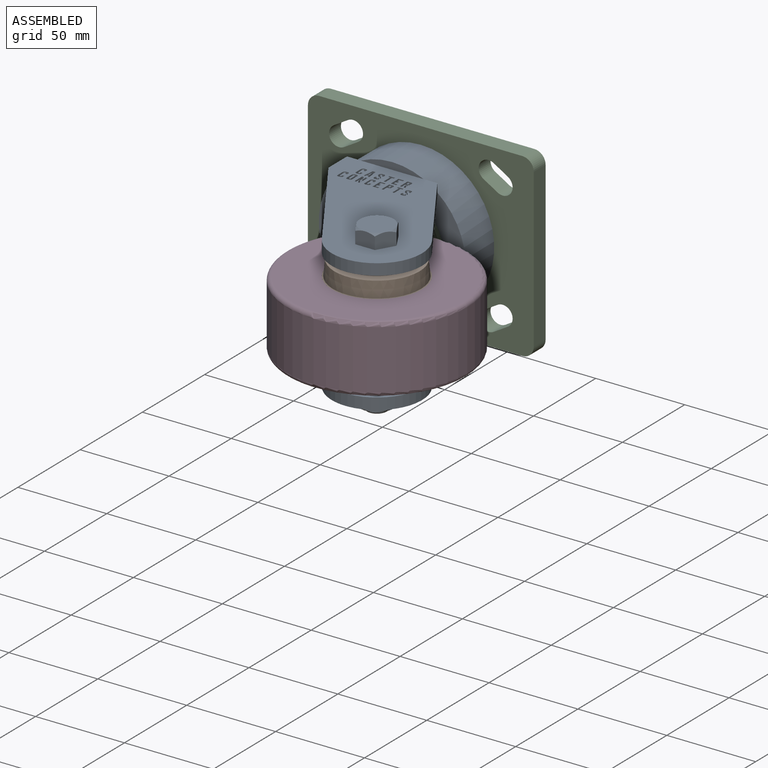
[diagram: assembled view]
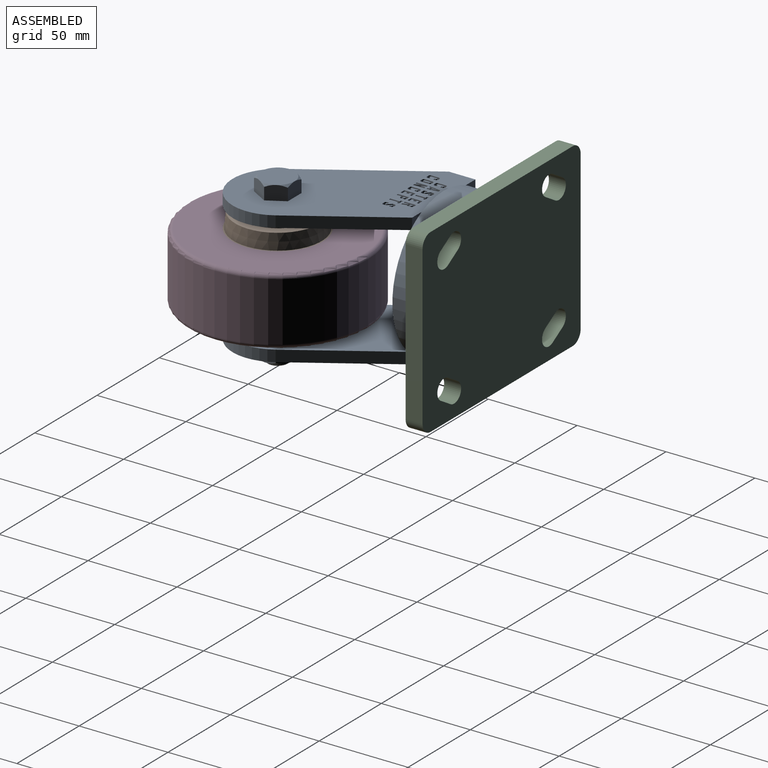
[diagram: assembled view, second angle]
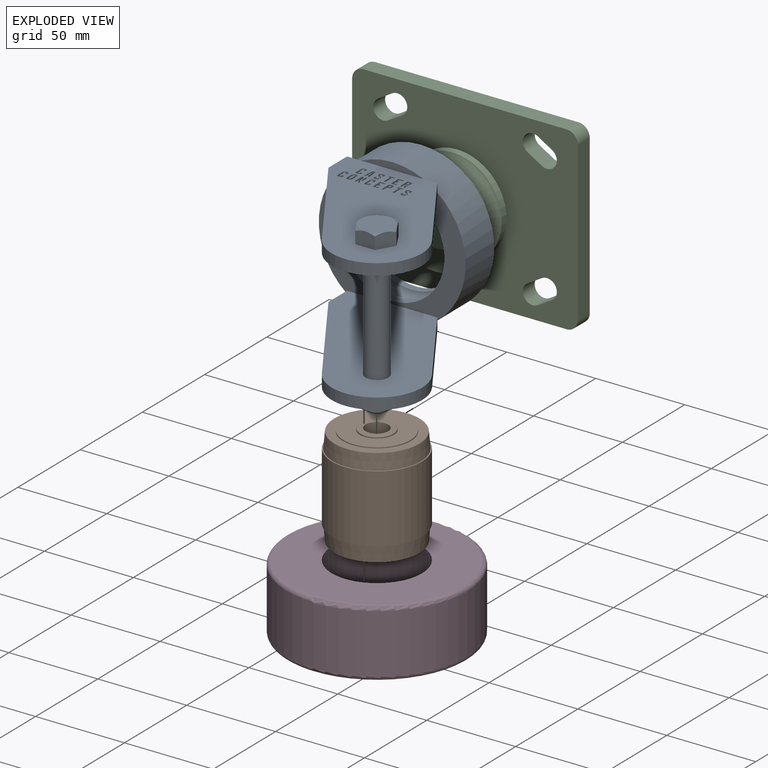
[diagram: exploded view]
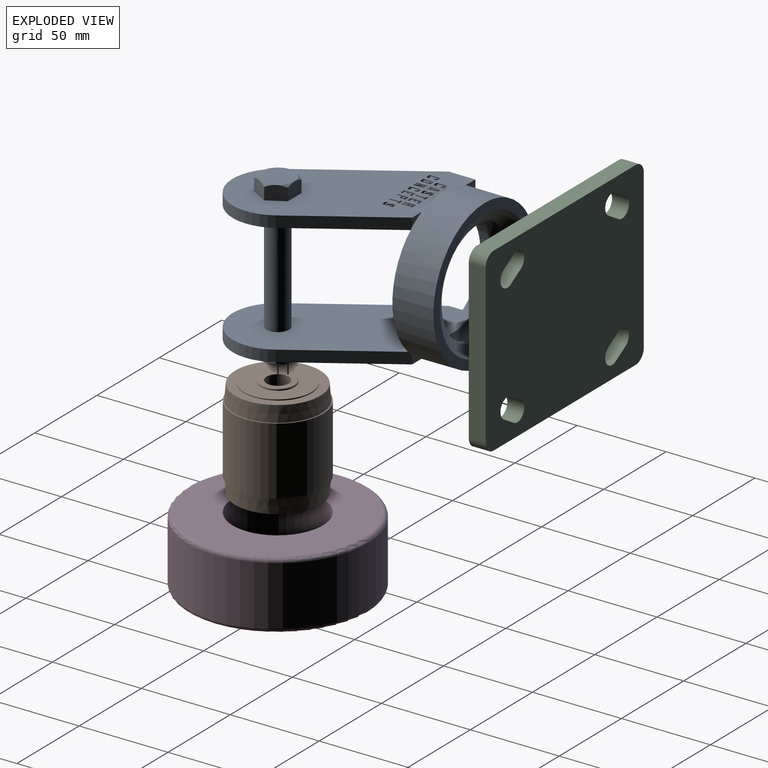
[diagram: exploded view, second angle]
ASSEMBLY  parts=4 mates=3
PART A: 279 faces, bbox 105.8x116.1x94.8 mm
  f0: cone r=9.53mm half-angle=50.3deg, axis (0,0,-1), area 10mm2, adj f27,f263,f268
  f1: cone r=9.53mm half-angle=50.3deg, axis (0,0,-1), area 10mm2, adj f27,f263,f264
  f2: cone r=9.53mm half-angle=50.3deg, axis (0,0,-1), area 10mm2, adj f27,f264,f265
  f3: cone r=9.53mm half-angle=50.3deg, axis (0,0,-1), area 10mm2, adj f27,f265,f266
  f4: cone r=9.53mm half-angle=50.3deg, axis (0,0,-1), area 10mm2, adj f27,f266,f267
  f5: cone r=9.53mm half-angle=50.3deg, axis (0,0,-1), area 10mm2, adj f27,f267,f268
  f6: plane 14.93x6.35mm, normal (-1,0,0), area 94.8mm2, adj f8,f14,f24,f209,f247
  f7: plane 14.93x6.35mm, normal (-1,0,0), area 94.8mm2, adj f9,f14,f23,f27,f248
  f8: plane 65.49x42.14mm, normal (-0.84,-0.54,0), area 494.5mm2, adj f6,f10,f209,f247
  f9: plane 65.49x42.14mm, normal (-0.84,-0.54,0), area 494.5mm2, adj f7,f11,f27,f248
  f10: cylinder r=25.4mm len=46.76mm, axis (0,0,-1), area 506.7mm2, adj f8,f12,f209,f247
  f11: cylinder r=25.4mm len=46.76mm, axis (0,0,-1), area 506.7mm2, adj f9,f13,f27,f248
  f12: plane 52.93x34.06mm, normal (0.84,0.54,0), area 399.7mm2, adj f10,f14,f25,f209,f247
  f13: plane 52.93x34.06mm, normal (0.84,0.54,0), area 399.7mm2, adj f11,f14,f26,f27,f248
  f14: plane 82.55x65.07mm, normal (0,-1,0), area 1877.4mm2, adj f6,f7,f12,f13,f18,f20,f247,f248
  f15: plane 35.32x3.97mm, normal (0,-1,0), area 94.4mm2, adj f20,f27
  f16: cylinder r=29.36mm len=58.73mm, axis (0,-1,0), area 764.8mm2, adj f17,f22
  f17: torus R=28.47mm, axis (0,-1,0), area 2732.4mm2, adj f16,f18
  f18: cylinder r=29.36mm len=58.73mm, axis (0,-1,0), area 1013.1mm2, adj f14,f17
  f19: plane 35.32x3.97mm, normal (0,-1,0), area 94.4mm2, adj f20,f209
  f20: cylinder r=41.27mm len=82.55mm, axis (0,-1,0), area 5968mm2, adj f14,f15,f19,f21,f23,f24,f25,f26
  f21: plane 82.55x82.55mm, normal (0,1,0), area 1316.8mm2, adj f20,f22
  f22: cone r=35.84mm half-angle=60deg, axis (0,1,0), area 1531.4mm2, adj f16,f21
  f23: plane 7.74x4.77mm, normal (0,1,0), area 16.9mm2, adj f7,f20,f27
  f24: plane 7.74x4.77mm, normal (0,1,0), area 16.9mm2, adj f6,f20,f209
  f25: plane 7.74x4.77mm, normal (0,1,0), area 16.9mm2, adj f12,f20,f209
  f26: plane 7.74x4.77mm, normal (0,1,0), area 16.9mm2, adj f13,f20,f27
  f27: plane 92.08x88.9mm, normal (0,0,-1), area 4684.4mm2, adj f0,f1,f2,f3,f4,f5,f7,f9
  f28: plane 1.27x1.02mm, normal (1,0,0), area 1.3mm2, adj f29,f195,f209,f223
  f29: plane 1.27x1.02mm, normal (0,-1,0), area 1.3mm2, adj f28,f30,f209,f223
  f30: plane 1.27x0.51mm, normal (-1,0,0), area 0.6mm2, adj f29,f31,f209,f223
  f31: cylinder r=0.51mm len=1.27mm, axis (0,0,1), area 2mm2, adj f30,f32,f209,f223
  f32: plane 1.27x0.41mm, normal (1,0,0), area 0.5mm2, adj f31,f33,f209,f223
  f33: cylinder r=0.25mm len=1.27mm, axis (0,0,1), area 0.2mm2, adj f32,f34,f209,f223
  f34: plane 1.9x1.79mm, normal (0.73,0.69,0), area 3.3mm2, adj f33,f35,f209,f223
  f35: cylinder r=0.64mm len=1.27mm, axis (0,0,1), area 0.6mm2, adj f34,f36,f209,f223
  f36: plane 1.27x0.76mm, normal (1,0,0), area 1mm2, adj f35,f37,f209,f223
  f37: cylinder r=1.02mm len=1.27mm, axis (0,0,1), area 2mm2, adj f36,f38,f209,f223
  f38: plane 1.27x1.02mm, normal (0,-1,0), area 1.3mm2, adj f37,f39,f209,f223
  f39: cylinder r=1.02mm len=1.27mm, axis (0,0,1), area 2mm2, adj f38,f40,f209,f223
  f40: plane 1.27x1.02mm, normal (-1,0,0), area 1.3mm2, adj f39,f41,f209,f223
  f41: plane 1.27x1.02mm, normal (0,1,0), area 1.3mm2, adj f40,f42,f209,f223
  f42: plane 1.27x0.51mm, normal (1,0,0), area 0.6mm2, adj f41,f43,f209,f223
  f43: cylinder r=0.51mm len=1.27mm, axis (0,0,1), area 2mm2, adj f42,f44,f209,f223
  f44: plane 1.27x0.19mm, normal (-1,0,0), area 0.2mm2, adj f43,f45,f209,f223
  f45: cylinder r=0.25mm len=1.27mm, axis (0,0,1), area 0.2mm2, adj f44,f46,f209,f223
  f46: plane 1.79x1.69mm, normal (-0.73,-0.69,0), area 3.1mm2, adj f45,f47,f209,f223
  f47: cylinder r=1.02mm len=1.27mm, axis (0,0,1), area 1mm2, adj f46,f48,f209,f223
  f48: plane 1.27x0.83mm, normal (-1,0,0), area 1.1mm2, adj f47,f49,f209,f223
  f49: cylinder r=1.02mm len=1.27mm, axis (0,0,1), area 2mm2, adj f48,f50,f209,f223
  f50: plane 1.27x1.02mm, normal (0,1,0), area 1.3mm2, adj f49,f195,f209,f223
  f51: plane 1.27x1.02mm, normal (1,0,0), area 1.3mm2, adj f52,f196,f209,f222
  f52: plane 3.05x1.27mm, normal (0,-1,0), area 3.9mm2, adj f51,f53,f209,f222
  f53: plane 1.27x1.02mm, normal (-1,0,0), area 1.3mm2, adj f52,f54,f209,f222
  f54: plane 1.27x1.02mm, normal (0,1,0), area 1.3mm2, adj f53,f55,f209,f222
  f55: plane 5.21x1.27mm, normal (-1,0,0), area 6.6mm2, adj f54,f56,f209,f222
  f56: plane 1.27x1.02mm, normal (0,1,0), area 1.3mm2, adj f55,f57,f209,f222
  f57: plane 5.21x1.27mm, normal (1,0,0), area 6.6mm2, adj f56,f196,f209,f222
  f58: plane 6.22x1.27mm, normal (1,0,0), area 7.9mm2, adj f59,f197,f209,f221
  f59: plane 2.03x1.27mm, normal (0,-1,0), area 2.6mm2, adj f58,f60,f209,f221
  f60: cylinder r=1.02mm len=1.27mm, axis (0,0,1), area 2mm2, adj f59,f61,f209,f221
  f61: plane 1.4x1.27mm, normal (-1,0,0), area 1.8mm2, adj f60,f62,f209,f221
  f62: cylinder r=1.02mm len=1.27mm, axis (0,0,1), area 1.5mm2, adj f61,f63,f209,f221
  f63: plane 2.88x1.27mm, normal (-0.98,-0.21,0), area 3.7mm2, adj f62,f64,f209,f221
  f64: plane 1.27x1.02mm, normal (0,1,0), area 1.3mm2, adj f63,f65,f209,f221
  f65: plane 2.79x1.27mm, normal (0.98,0.21,0), area 3.6mm2, adj f64,f66,f209,f221
  f66: plane 1.27x0.43mm, normal (0,1,0), area 0.5mm2, adj f65,f67,f209,f221
  f67: plane 2.79x1.27mm, normal (-1,0,0), area 3.5mm2, adj f66,f197,f209,f221
  f68: plane 6.22x1.27mm, normal (1,0,0), area 7.9mm2, adj f69,f198,f209,f220
  f69: plane 3.05x1.27mm, normal (0,-1,0), area 3.9mm2, adj f68,f70,f209,f220
  f70: plane 1.27x1.02mm, normal (-1,0,0), area 1.3mm2, adj f69,f71,f209,f220
  f71: plane 2.03x1.27mm, normal (0,1,0), area 2.6mm2, adj f70,f72,f209,f220
  f72: plane 1.4x1.27mm, normal (-1,0,0), area 1.8mm2, adj f71,f73,f209,f220
  f73: plane 1.27x1.02mm, normal (0,-1,0), area 1.3mm2, adj f72,f74,f209,f220
  f74: plane 1.4x1.27mm, normal (-1,0,0), area 1.8mm2, adj f73,f75,f209,f220
  f75: plane 1.27x1.02mm, normal (0,1,0), area 1.3mm2, adj f74,f76,f209,f220
  f76: plane 1.4x1.27mm, normal (-1,0,0), area 1.8mm2, adj f75,f77,f209,f220
  f77: plane 2.03x1.27mm, normal (0,-1,0), area 2.6mm2, adj f76,f78,f209,f220
  f78: plane 1.27x1.02mm, normal (-1,0,0), area 1.3mm2, adj f77,f198,f209,f220
  f79: plane 6.22x1.27mm, normal (1,0,0), area 7.9mm2, adj f80,f199,f209,f219
  f80: plane 2.03x1.27mm, normal (0,-1,0), area 2.6mm2, adj f79,f81,f209,f219
  f81: cylinder r=1.02mm len=1.27mm, axis (0,0,1), area 2mm2, adj f80,f82,f209,f219
  f82: plane 1.4x1.27mm, normal (-1,0,0), area 1.8mm2, adj f81,f83,f209,f219
  f83: cylinder r=1.02mm len=1.27mm, axis (0,0,1), area 2mm2, adj f82,f84,f209,f219
  f84: plane 1.27x1.02mm, normal (0,1,0), area 1.3mm2, adj f83,f85,f209,f219
  f85: plane 2.79x1.27mm, normal (-1,0,0), area 3.5mm2, adj f84,f199,f209,f219
  f86: plane 6.22x1.27mm, normal (1,0,0), area 7.9mm2, adj f87,f200,f209,f218
  f87: plane 3.05x1.27mm, normal (0,-1,0), area 3.9mm2, adj f86,f88,f209,f218
  f88: plane 1.27x1.02mm, normal (-1,0,0), area 1.3mm2, adj f87,f89,f209,f218
  f89: plane 2.03x1.27mm, normal (0,1,0), area 2.6mm2, adj f88,f90,f209,f218
  f90: plane 1.4x1.27mm, normal (-1,0,0), area 1.8mm2, adj f89,f91,f209,f218
  f91: plane 1.27x1.02mm, normal (0,-1,0), area 1.3mm2, adj f90,f92,f209,f218
  f92: plane 1.4x1.27mm, normal (-1,0,0), area 1.8mm2, adj f91,f93,f209,f218
  f93: plane 1.27x1.02mm, normal (0,1,0), area 1.3mm2, adj f92,f94,f209,f218
  f94: plane 1.4x1.27mm, normal (-1,0,0), area 1.8mm2, adj f93,f95,f209,f218
  f95: plane 2.03x1.27mm, normal (0,-1,0), area 2.6mm2, adj f94,f96,f209,f218
  f96: plane 1.27x1.02mm, normal (-1,0,0), area 1.3mm2, adj f95,f200,f209,f218
  f97: plane 1.27x1.02mm, normal (1,0,0), area 1.3mm2, adj f98,f201,f209,f217
  f98: plane 3.05x1.27mm, normal (0,-1,0), area 3.9mm2, adj f97,f99,f209,f217
  f99: plane 1.27x1.02mm, normal (-1,0,0), area 1.3mm2, adj f98,f100,f209,f217
  f100: plane 1.27x1.02mm, normal (0,1,0), area 1.3mm2, adj f99,f101,f209,f217
  f101: plane 5.21x1.27mm, normal (-1,0,0), area 6.6mm2, adj f100,f102,f209,f217
  f102: plane 1.27x1.02mm, normal (0,1,0), area 1.3mm2, adj f101,f103,f209,f217
  f103: plane 5.21x1.27mm, normal (1,0,0), area 6.6mm2, adj f102,f201,f209,f217
  f104: plane 1.27x1.02mm, normal (1,0,0), area 1.3mm2, adj f105,f202,f209,f216
  f105: plane 1.27x1.02mm, normal (0,-1,0), area 1.3mm2, adj f104,f106,f209,f216
  f106: plane 1.27x0.51mm, normal (-1,0,0), area 0.6mm2, adj f105,f107,f209,f216
  f107: cylinder r=0.51mm len=1.27mm, axis (0,0,1), area 2mm2, adj f106,f108,f209,f216
  f108: plane 1.27x0.41mm, normal (1,0,0), area 0.5mm2, adj f107,f109,f209,f216
  f109: cylinder r=0.25mm len=1.27mm, axis (0,0,1), area 0.2mm2, adj f108,f110,f209,f216
  f110: plane 1.9x1.79mm, normal (0.73,0.69,0), area 3.3mm2, adj f109,f111,f209,f216
  f111: cylinder r=0.64mm len=1.27mm, axis (0,0,1), area 0.6mm2, adj f110,f112,f209,f216
  f112: plane 1.27x0.76mm, normal (1,0,0), area 1mm2, adj f111,f113,f209,f216
  f113: cylinder r=1.02mm len=1.27mm, axis (0,0,1), area 2mm2, adj f112,f114,f209,f216
  f114: plane 1.27x1.02mm, normal (0,-1,0), area 1.3mm2, adj f113,f115,f209,f216
  f115: cylinder r=1.02mm len=1.27mm, axis (0,0,1), area 2mm2, adj f114,f116,f209,f216
  f116: plane 1.27x1.02mm, normal (-1,0,0), area 1.3mm2, adj f115,f117,f209,f216
  f117: plane 1.27x1.02mm, normal (0,1,0), area 1.3mm2, adj f116,f118,f209,f216
  f118: plane 1.27x0.51mm, normal (1,0,0), area 0.6mm2, adj f117,f119,f209,f216
  f119: cylinder r=0.51mm len=1.27mm, axis (0,0,1), area 2mm2, adj f118,f120,f209,f216
  f120: plane 1.27x0.19mm, normal (-1,0,0), area 0.2mm2, adj f119,f121,f209,f216
  f121: cylinder r=0.25mm len=1.27mm, axis (0,0,1), area 0.2mm2, adj f120,f122,f209,f216
  f122: plane 1.79x1.69mm, normal (-0.73,-0.69,0), area 3.1mm2, adj f121,f123,f209,f216
  f123: cylinder r=1.02mm len=1.27mm, axis (0,0,1), area 1mm2, adj f122,f124,f209,f216
  f124: plane 1.27x0.83mm, normal (-1,0,0), area 1.1mm2, adj f123,f125,f209,f216
  f125: cylinder r=1.02mm len=1.27mm, axis (0,0,1), area 2mm2, adj f124,f126,f209,f216
  f126: plane 1.27x1.02mm, normal (0,1,0), area 1.3mm2, adj f125,f202,f209,f216
  f127: plane 4.19x1.27mm, normal (1,0,0), area 5.3mm2, adj f128,f203,f209,f215
  f128: cylinder r=1.02mm len=1.27mm, axis (0,0,1), area 2mm2, adj f127,f129,f209,f215
  f129: plane 1.27x1.02mm, normal (0,-1,0), area 1.3mm2, adj f128,f130,f209,f215
  f130: cylinder r=1.02mm len=1.27mm, axis (0,0,1), area 2mm2, adj f129,f131,f209,f215
  f131: plane 1.27x1.02mm, normal (-1,0,0), area 1.3mm2, adj f130,f132,f209,f215
  f132: plane 1.27x1.02mm, normal (0,1,0), area 1.3mm2, adj f131,f133,f209,f215
  f133: plane 1.27x0.51mm, normal (1,0,0), area 0.6mm2, adj f132,f134,f209,f215
  f134: cylinder r=0.51mm len=1.27mm, axis (0,0,1), area 2mm2, adj f133,f135,f209,f215
  f135: plane 3.18x1.27mm, normal (-1,0,0), area 4mm2, adj f134,f136,f209,f215
  f136: cylinder r=0.51mm len=1.27mm, axis (0,0,1), area 2mm2, adj f135,f137,f209,f215
  f137: plane 1.27x0.51mm, normal (1,0,0), area 0.6mm2, adj f136,f138,f209,f215
  f138: plane 1.27x1.02mm, normal (0,-1,0), area 1.3mm2, adj f137,f139,f209,f215
  f139: plane 1.27x1.02mm, normal (-1,0,0), area 1.3mm2, adj f138,f140,f209,f215
  f140: cylinder r=1.02mm len=1.27mm, axis (0,0,1), area 2mm2, adj f139,f141,f209,f215
  f141: plane 1.27x1.02mm, normal (0,1,0), area 1.3mm2, adj f140,f203,f209,f215
  f142: plane 1.27x1.02mm, normal (0,-1,0), area 1.3mm2, adj f143,f204,f209,f214
  f143: plane 2.79x1.27mm, normal (-0.94,-0.34,0), area 3.8mm2, adj f142,f144,f209,f214
  f144: plane 2.79x1.27mm, normal (1,0,0), area 3.5mm2, adj f143,f145,f209,f214
  f145: plane 1.27x1.02mm, normal (0,-1,0), area 1.3mm2, adj f144,f146,f209,f214
  f146: plane 6.22x1.27mm, normal (-1,0,0), area 7.9mm2, adj f145,f147,f209,f214
  f147: plane 1.27x1.02mm, normal (0,1,0), area 1.3mm2, adj f146,f148,f209,f214
  f148: plane 2.79x1.27mm, normal (0.94,0.34,0), area 3.8mm2, adj f147,f149,f209,f214
  f149: plane 2.79x1.27mm, normal (-1,0,0), area 3.5mm2, adj f148,f150,f209,f214
  f150: plane 1.27x1.02mm, normal (0,1,0), area 1.3mm2, adj f149,f204,f209,f214
  f151: plane 6.22x1.27mm, normal (0.99,-0.12,0), area 8mm2, adj f152,f205,f209,f213
  f152: plane 1.52x1.27mm, normal (0,-1,0), area 1.9mm2, adj f151,f153,f209,f213
  f153: plane 6.22x1.27mm, normal (-0.99,-0.12,0), area 8mm2, adj f152,f154,f209,f213
  f154: plane 1.27x0.9mm, normal (0,1,0), area 1.1mm2, adj f153,f155,f209,f213
  f155: plane 1.27x1.02mm, normal (0.99,0.12,0), area 1.3mm2, adj f154,f156,f209,f213
  f156: plane 1.27x1.01mm, normal (0,1,0), area 1.3mm2, adj f155,f157,f209,f213
  f157: plane 1.27x1.02mm, normal (-0.99,0.12,0), area 1.3mm2, adj f156,f205,f209,f213
  f158: plane 4.19x1.27mm, normal (1,0,0), area 5.3mm2, adj f159,f206,f209,f212
  f159: cylinder r=1.02mm len=1.27mm, axis (0,0,1), area 2mm2, adj f158,f160,f209,f212
  f160: plane 1.27x1.02mm, normal (0,-1,0), area 1.3mm2, adj f159,f161,f209,f212
  f161: cylinder r=1.02mm len=1.27mm, axis (0,0,1), area 2mm2, adj f160,f162,f209,f212
  f162: plane 1.27x1.02mm, normal (-1,0,0), area 1.3mm2, adj f161,f163,f209,f212
  f163: plane 1.27x1.02mm, normal (0,1,0), area 1.3mm2, adj f162,f164,f209,f212
  f164: plane 1.27x0.51mm, normal (1,0,0), area 0.6mm2, adj f163,f165,f209,f212
  f165: cylinder r=0.51mm len=1.27mm, axis (0,0,1), area 2mm2, adj f164,f166,f209,f212
  f166: plane 3.18x1.27mm, normal (-1,0,0), area 4mm2, adj f165,f167,f209,f212
  f167: cylinder r=0.51mm len=1.27mm, axis (0,0,1), area 2mm2, adj f166,f168,f209,f212
  f168: plane 1.27x0.51mm, normal (1,0,0), area 0.6mm2, adj f167,f169,f209,f212
  f169: plane 1.27x1.02mm, normal (0,-1,0), area 1.3mm2, adj f168,f170,f209,f212
  f170: plane 1.27x1.02mm, normal (-1,0,0), area 1.3mm2, adj f169,f171,f209,f212
  f171: cylinder r=1.02mm len=1.27mm, axis (0,0,1), area 2mm2, adj f170,f172,f209,f212
  f172: plane 1.27x1.02mm, normal (0,1,0), area 1.3mm2, adj f171,f206,f209,f212
  f173: plane 4.19x1.27mm, normal (1,0,0), area 5.3mm2, adj f174,f207,f209,f211
  f174: cylinder r=1.02mm len=1.27mm, axis (0,0,1), area 2mm2, adj f173,f175,f209,f211
  f175: plane 1.27x1.02mm, normal (0,-1,0), area 1.3mm2, adj f174,f176,f209,f211
  f176: cylinder r=1.02mm len=1.27mm, axis (0,0,1), area 2mm2, adj f175,f177,f209,f211
  f177: plane 4.19x1.27mm, normal (-1,0,0), area 5.3mm2, adj f176,f178,f209,f211
  f178: cylinder r=1.02mm len=1.27mm, axis (0,0,1), area 2mm2, adj f177,f179,f209,f211
  f179: plane 1.27x1.02mm, normal (0,1,0), area 1.3mm2, adj f178,f207,f209,f211
  f180: plane 4.19x1.27mm, normal (1,0,0), area 5.3mm2, adj f181,f208,f209,f210
  f181: cylinder r=1.02mm len=1.27mm, axis (0,0,1), area 2mm2, adj f180,f182,f209,f210
  f182: plane 1.27x1.02mm, normal (0,-1,0), area 1.3mm2, adj f181,f183,f209,f210
  f183: cylinder r=1.02mm len=1.27mm, axis (0,0,1), area 2mm2, adj f182,f184,f209,f210
  f184: plane 1.27x1.02mm, normal (-1,0,0), area 1.3mm2, adj f183,f185,f209,f210
  f185: plane 1.27x1.02mm, normal (0,1,0), area 1.3mm2, adj f184,f186,f209,f210
  f186: plane 1.27x0.51mm, normal (1,0,0), area 0.6mm2, adj f185,f187,f209,f210
  f187: cylinder r=0.51mm len=1.27mm, axis (0,0,1), area 2mm2, adj f186,f188,f209,f210
  f188: plane 3.18x1.27mm, normal (-1,0,0), area 4mm2, adj f187,f189,f209,f210
  f189: cylinder r=0.51mm len=1.27mm, axis (0,0,1), area 2mm2, adj f188,f190,f209,f210
  f190: plane 1.27x0.51mm, normal (1,0,0), area 0.6mm2, adj f189,f191,f209,f210
  f191: plane 1.27x1.02mm, normal (0,-1,0), area 1.3mm2, adj f190,f192,f209,f210
  f192: plane 1.27x1.02mm, normal (-1,0,0), area 1.3mm2, adj f191,f193,f209,f210
  f193: cylinder r=1.02mm len=1.27mm, axis (0,0,1), area 2mm2, adj f192,f194,f209,f210
  f194: plane 1.27x1.02mm, normal (0,1,0), area 1.3mm2, adj f193,f208,f209,f210
  f195: cylinder r=1.02mm len=1.27mm, axis (0,0,1), area 2mm2, adj f28,f50,f209,f223
  f196: plane 1.27x1.02mm, normal (0,1,0), area 1.3mm2, adj f51,f57,f209,f222
  f197: plane 1.27x1.02mm, normal (0,1,0), area 1.3mm2, adj f58,f67,f209,f221
  f198: plane 3.05x1.27mm, normal (0,1,0), area 3.9mm2, adj f68,f78,f209,f220
  f199: plane 1.27x1.02mm, normal (0,1,0), area 1.3mm2, adj f79,f85,f209,f219
  f200: plane 3.05x1.27mm, normal (0,1,0), area 3.9mm2, adj f86,f96,f209,f218
  f201: plane 1.27x1.02mm, normal (0,1,0), area 1.3mm2, adj f97,f103,f209,f217
  f202: cylinder r=1.02mm len=1.27mm, axis (0,0,1), area 2mm2, adj f104,f126,f209,f216
  f203: cylinder r=1.02mm len=1.27mm, axis (0,0,1), area 2mm2, adj f127,f141,f209,f215
  f204: plane 6.22x1.27mm, normal (1,0,0), area 7.9mm2, adj f142,f150,f209,f214
  f205: plane 1.27x0.9mm, normal (0,1,0), area 1.1mm2, adj f151,f157,f209,f213
  f206: cylinder r=1.02mm len=1.27mm, axis (0,0,1), area 2mm2, adj f158,f172,f209,f212
  f207: cylinder r=1.02mm len=1.27mm, axis (0,0,1), area 2mm2, adj f173,f179,f209,f211
  f208: cylinder r=1.02mm len=1.27mm, axis (0,0,1), area 2mm2, adj f180,f194,f209,f210
  f209: plane 92.08x88.9mm, normal (0,0,1), area 4478.7mm2, adj f6,f8,f10,f12,f19,f24,f25,f28
  f210: plane 6.22x3.05mm, normal (0,0,1), area 11.9mm2, adj f180,f181,f182,f183,f184,f185,f186,f187
  f211: plane 6.22x3.05mm, normal (0,0,1), area 14mm2, adj f173,f174,f175,f176,f177,f178,f179,f207
  f212: plane 6.22x3.05mm, normal (0,0,1), area 11.9mm2, adj f158,f159,f160,f161,f162,f163,f164,f165
  f213: plane 6.22x3.05mm, normal (0,0,1), area 11.8mm2, adj f151,f152,f153,f154,f155,f156,f157,f205
  f214: plane 6.22x3.05mm, normal (0,0,1), area 16.1mm2, adj f142,f143,f144,f145,f146,f147,f148,f149
  f215: plane 6.22x3.05mm, normal (0,0,1), area 11.9mm2, adj f127,f128,f129,f130,f131,f132,f133,f134
  f216: plane 6.22x3.05mm, normal (0,0,1), area 12.3mm2, adj f104,f105,f106,f107,f108,f109,f110,f111
  f217: plane 6.22x3.05mm, normal (0,0,1), area 8.4mm2, adj f97,f98,f99,f100,f101,f102,f103,f201
  f218: plane 6.22x3.05mm, normal (0,0,1), area 11.9mm2, adj f86,f87,f88,f89,f90,f91,f92,f93
  f219: plane 6.22x3.05mm, normal (0,0,1), area 11.5mm2, adj f79,f80,f81,f82,f83,f84,f85,f199
  f220: plane 6.22x3.05mm, normal (0,0,1), area 11.9mm2, adj f68,f69,f70,f71,f72,f73,f74,f75
  f221: plane 6.22x3.05mm, normal (0,0,1), area 14.4mm2, adj f58,f59,f60,f61,f62,f63,f64,f65
  f222: plane 6.22x3.05mm, normal (0,0,1), area 8.4mm2, adj f51,f52,f53,f54,f55,f56,f57,f196
  f223: plane 6.22x3.05mm, normal (0,0,1), area 12.3mm2, adj f28,f29,f30,f31,f32,f33,f34,f35
  f224: plane 3.23x1.27mm, normal (-0.99,0.12,0), area 4.1mm2, adj f213,f225,f226,f227
  f225: plane 1.27x0.79mm, normal (0,-1,0), area 1mm2, adj f213,f224,f226,f227
  f226: plane 3.23x1.27mm, normal (0.99,0.12,0), area 4.1mm2, adj f213,f224,f225,f227
  f227: plane 3.23x0.79mm, normal (0,0,1), area 1.3mm2, adj f224,f225,f226
  f228: plane 1.4x1.27mm, normal (-1,0,0), area 1.8mm2, adj f221,f229,f233,f234
  f229: plane 1.27x0.51mm, normal (0,-1,0), area 0.6mm2, adj f221,f228,f230,f234
  f230: cylinder r=0.51mm len=1.27mm, axis (0,0,1), area 1mm2, adj f221,f229,f231,f234
  f231: plane 1.27x0.38mm, normal (1,0,0), area 0.5mm2, adj f221,f230,f232,f234
  f232: cylinder r=0.51mm len=1.27mm, axis (0,0,1), area 1mm2, adj f221,f231,f233,f234
  f233: plane 1.27x0.51mm, normal (0,1,0), area 0.6mm2, adj f221,f228,f232,f234
  f234: plane 1.4x1.02mm, normal (0,0,1), area 1.3mm2, adj f228,f229,f230,f231,f232,f233
  f235: plane 3.18x1.27mm, normal (-1,0,0), area 4mm2, adj f211,f236,f238,f239
  f236: cylinder r=0.51mm len=1.27mm, axis (0,0,1), area 2mm2, adj f211,f235,f237,f239
  f237: plane 3.18x1.27mm, normal (1,0,0), area 4mm2, adj f211,f236,f238,f239
  f238: cylinder r=0.51mm len=1.27mm, axis (0,0,1), area 2mm2, adj f211,f235,f237,f239
  f239: plane 4.19x1.02mm, normal (0,0,1), area 4mm2, adj f235,f236,f237,f238
  f240: plane 1.4x1.27mm, normal (-1,0,0), area 1.8mm2, adj f219,f241,f245,f246
  f241: plane 1.27x0.51mm, normal (0,-1,0), area 0.6mm2, adj f219,f240,f242,f246
  f242: cylinder r=0.51mm len=1.27mm, axis (0,0,1), area 1mm2, adj f219,f241,f243,f246
  f243: plane 1.27x0.38mm, normal (1,0,0), area 0.5mm2, adj f219,f242,f244,f246
  f244: cylinder r=0.51mm len=1.27mm, axis (0,0,1), area 1mm2, adj f219,f243,f245,f246
  f245: plane 1.27x0.51mm, normal (0,1,0), area 0.6mm2, adj f219,f240,f244,f246
  f246: plane 1.4x1.02mm, normal (0,0,1), area 1.3mm2, adj f240,f241,f242,f243,f244,f245
  f247: plane 92.08x88.9mm, normal (0,0,-1), area 4842.7mm2, adj f6,f8,f10,f12,f14,f249
  f248: plane 92.08x88.9mm, normal (0,0,1), area 4842.7mm2, adj f7,f9,f11,f13,f14,f249
  f249: cylinder r=6.35mm len=61.91mm, axis (0,0,-1), area 2470.2mm2, adj f247,f248
  f250: plane 10.53x9.07mm, normal (-0.87,0.5,0), area 84.1mm2, adj f209,f251,f255,f259,f260
  f251: plane 12.01x9.07mm, normal (0,1,0), area 84.1mm2, adj f209,f250,f252,f256,f260
  f252: plane 10.53x9.07mm, normal (0.87,0.5,0), area 84.1mm2, adj f209,f251,f253,f256,f257
  f253: plane 10.53x9.07mm, normal (0.87,-0.5,0), area 84.1mm2, adj f209,f252,f254,f257,f258
  f254: plane 12.01x9.07mm, normal (0,-1,0), area 84.1mm2, adj f209,f253,f255,f258,f262
  f255: plane 10.53x9.07mm, normal (-0.87,-0.5,0), area 84.1mm2, adj f209,f250,f254,f259,f262
  f256: cone r=9.53mm half-angle=50.3deg, axis (0,0,-1), area 10mm2, adj f251,f252,f261
  f257: cone r=9.53mm half-angle=50.3deg, axis (0,0,-1), area 10mm2, adj f252,f253,f261
  f258: cone r=9.53mm half-angle=50.3deg, axis (0,0,-1), area 10mm2, adj f253,f254,f261
  f259: cone r=9.53mm half-angle=50.3deg, axis (0,0,-1), area 10mm2, adj f250,f255,f261
  f260: cone r=9.53mm half-angle=50.3deg, axis (0,0,-1), area 10mm2, adj f250,f251,f261
  f261: plane 19.05x19.05mm, normal (0,0,1), area 285mm2, adj f256,f257,f258,f259,f260,f262
  f262: cone r=9.53mm half-angle=50.3deg, axis (0,0,-1), area 10mm2, adj f254,f255,f261
  f263: plane 12.01x9.47mm, normal (-1,0,0), area 83.8mm2, adj f0,f1,f264,f268,f272,f273
  f264: plane 10.53x9.47mm, normal (-0.5,0.87,0), area 83.8mm2, adj f1,f2,f263,f265,f272,f276
  f265: plane 10.53x9.47mm, normal (0.5,0.87,0), area 83.8mm2, adj f2,f3,f264,f266,f275,f276
  f266: plane 12.01x9.47mm, normal (1,0,0), area 83.8mm2, adj f3,f4,f265,f267,f274,f275
  f267: plane 10.53x9.47mm, normal (0.5,-0.87,0), area 83.8mm2, adj f4,f5,f266,f268,f274,f278
  f268: plane 10.53x9.47mm, normal (-0.5,-0.87,0), area 83.8mm2, adj f0,f5,f263,f267,f273,f278
  f269: plane 11.07x11.07mm, normal (0,0,-1), area 96.3mm2, adj f270
  f270: cone r=6.35mm half-angle=45deg, axis (0,0,1), area 42.9mm2, adj f269,f271
  f271: cylinder r=6.35mm len=12.7mm, axis (0,0,-1), area 73mm2, adj f270,f277
  f272: cone r=11.18mm half-angle=50.3deg, axis (0,0,1), area 10mm2, adj f263,f264,f277
  f273: cone r=11.18mm half-angle=50.3deg, axis (0,0,1), area 10mm2, adj f263,f268,f277
  f274: cone r=11.18mm half-angle=50.3deg, axis (0,0,1), area 10mm2, adj f266,f267,f277
  f275: cone r=11.18mm half-angle=50.3deg, axis (0,0,1), area 10mm2, adj f265,f266,f277
  f276: cone r=11.18mm half-angle=50.3deg, axis (0,0,1), area 10mm2, adj f264,f265,f277
  f277: plane 19.05x19.05mm, normal (0,0,-1), area 158.3mm2, adj f271,f272,f273,f274,f275,f276,f278
  f278: cone r=11.18mm half-angle=50.3deg, axis (0,0,1), area 10mm2, adj f267,f268,f277
PART B: 18 faces, bbox 58.8x50.8x50.8 mm
  f0: cone r=23.97mm half-angle=5deg, axis (-1,0,0), area 1342.2mm2, adj f6,f7
  f1: plane 18.03x18.03mm, normal (1,0,0), area 128.8mm2, adj f2,f17
  f2: torus R=9.02mm, axis (-1,0,0), area 46.8mm2, adj f1,f3
  f3: cylinder r=9.53mm len=19.05mm, axis (-1,0,0), area 30.4mm2, adj f2,f4
  f4: plane 38.1x38.1mm, normal (1,0,0), area 855.1mm2, adj f3,f5
  f5: cylinder r=19.05mm len=38.1mm, axis (-1,0,0), area 68.4mm2, adj f4,f6
  f6: plane 47.95x47.95mm, normal (1,0,0), area 665.4mm2, adj f0,f5
  f7: plane 50.8x50.8mm, normal (1,0,0), area 104.4mm2, adj f0,f8
  f8: cylinder r=25.4mm len=50.8mm, axis (-1,0,0), area 6080.5mm2, adj f7,f9
  f9: plane 50.8x50.8mm, normal (-1,0,0), area 104.4mm2, adj f8,f16
  f10: plane 18.03x18.03mm, normal (-1,0,0), area 128.8mm2, adj f11,f17
  f11: torus R=9.02mm, axis (-1,0,0), area 46.8mm2, adj f10,f12
  f12: cylinder r=9.53mm len=19.05mm, axis (-1,0,0), area 30.4mm2, adj f11,f13
  f13: plane 38.1x38.1mm, normal (-1,0,0), area 855.1mm2, adj f12,f14
  f14: cylinder r=19.05mm len=38.1mm, axis (-1,0,0), area 68.4mm2, adj f13,f15
  f15: plane 47.95x47.95mm, normal (-1,0,0), area 665.4mm2, adj f14,f16
  f16: cone r=25.4mm half-angle=5deg, axis (1,0,0), area 1342.2mm2, adj f9,f15
  f17: cylinder r=6.35mm len=58.75mm, axis (-1,0,0), area 2344mm2, adj f1,f10
PART C: 33 faces, bbox 127x33.4x101.6 mm
  f0: cylinder r=6.35mm len=9.53mm, axis (0,1,0), area 95mm2, adj f1,f23,f24,f25
  f1: plane 88.9x9.53mm, normal (1,0,0), area 846.8mm2, adj f0,f2,f24,f25
  f2: cylinder r=6.35mm len=9.53mm, axis (0,1,0), area 95mm2, adj f1,f3,f24,f25
  f3: plane 114.3x9.53mm, normal (0,0,-1), area 1088.7mm2, adj f2,f4,f24,f25
  f4: cylinder r=6.35mm len=9.53mm, axis (0,1,0), area 95mm2, adj f3,f5,f24,f25
  f5: plane 88.9x9.53mm, normal (-1,0,0), area 846.8mm2, adj f4,f6,f24,f25
  f6: cylinder r=6.35mm len=9.53mm, axis (0,1,0), area 95mm2, adj f5,f23,f24,f25
  f7: plane 9.53x7.94mm, normal (0.51,0,-0.86), area 88.2mm2, adj f8,f19,f24,f25
  f8: cylinder r=5.59mm len=10.38mm, axis (0,1,0), area 167.2mm2, adj f7,f9,f24,f25
  f9: plane 9.53x7.94mm, normal (-0.51,0,0.86), area 88.2mm2, adj f8,f19,f24,f25
  f10: plane 9.53x7.94mm, normal (-0.51,0,-0.86), area 88.2mm2, adj f11,f20,f24,f25
  f11: cylinder r=5.59mm len=10.38mm, axis (0,1,0), area 167.2mm2, adj f10,f12,f24,f25
  f12: plane 9.53x7.94mm, normal (0.51,0,0.86), area 88.2mm2, adj f11,f20,f24,f25
  f13: plane 9.53x7.94mm, normal (0.51,0,-0.86), area 88.2mm2, adj f14,f21,f24,f25
  f14: cylinder r=5.59mm len=10.38mm, axis (0,1,0), area 167.2mm2, adj f13,f15,f24,f25
  f15: plane 9.53x7.94mm, normal (-0.51,0,0.86), area 88.2mm2, adj f14,f21,f24,f25
  f16: plane 9.53x7.94mm, normal (-0.51,0,-0.86), area 88.2mm2, adj f17,f22,f24,f25
  f17: cylinder r=5.59mm len=10.38mm, axis (0,1,0), area 167.2mm2, adj f16,f18,f24,f25
  f18: plane 9.53x7.94mm, normal (0.51,0,0.86), area 88.2mm2, adj f17,f22,f24,f25
  f19: cylinder r=5.59mm len=10.38mm, axis (0,1,0), area 167.2mm2, adj f7,f9,f24,f25
  f20: cylinder r=5.59mm len=10.38mm, axis (0,1,0), area 167.2mm2, adj f10,f12,f24,f25
  f21: cylinder r=5.59mm len=10.38mm, axis (0,1,0), area 167.2mm2, adj f13,f15,f24,f25
  f22: cylinder r=5.59mm len=10.38mm, axis (0,1,0), area 167.2mm2, adj f16,f18,f24,f25
  f23: plane 114.3x9.53mm, normal (0,0,1), area 1088.7mm2, adj f0,f6,f24,f25
  f24: plane 127x101.6mm, normal (0,-1,0), area 10618.6mm2, adj f0,f1,f2,f3,f4,f5,f6,f7
  f25: plane 127x101.6mm, normal (0,1,0), area 12062.4mm2, adj f0,f1,f2,f3,f4,f5,f6,f7
  f26: torus R=28.65mm, axis (0,-1,0), area 2162.6mm2, adj f27,f31
  f27: cylinder r=27.79mm len=55.58mm, axis (0,-1,0), area 683mm2, adj f26,f28
  f28: plane 55.58x55.58mm, normal (0,-1,0), area 1634.1mm2, adj f27,f29
  f29: cylinder r=15.88mm len=31.75mm, axis (0,-1,0), area 2376.5mm2, adj f28,f32
  f30: cone r=27.79mm half-angle=45deg, axis (0,-1,0), area 1388.8mm2, adj f24,f31
  f31: cylinder r=27.79mm len=55.58mm, axis (0,-1,0), area 683mm2, adj f26,f30
  f32: plane 31.75x31.75mm, normal (0,-1,0), area 791.7mm2, adj f29
PART D: 6 faces, bbox 38.1x110x110 mm
  f0: torus R=48.42mm, axis (1,0,0), area 1173.6mm2, adj f1,f5
  f1: plane 96.84x96.84mm, normal (-1,0,0), area 5338.2mm2, adj f0,f2
  f2: cylinder r=25.4mm len=50.8mm, axis (1,0,0), area 6080.5mm2, adj f1,f3
  f3: plane 96.84x96.84mm, normal (1,0,0), area 5338.2mm2, adj f2,f4
  f4: torus R=48.42mm, axis (1,0,0), area 1173.6mm2, adj f3,f5
  f5: cylinder r=50.8mm len=101.6mm, axis (1,0,0), area 10640.9mm2, adj f0,f4
PLACE A t=(0,0,121)mm
PLACE B rot(axis=(0.71,0,-0.71),180deg) t=(38.1,-101.6,121)mm
PLACE C t=(0,-2.39,121)mm
PLACE D rot(axis=(0,-1,0),90deg) t=(38.1,-101.6,121)mm
MATE fastened C.f26 <-> A.f16  axis (0,-1,0) through (0,-11.91,121)mm
MATE fastened A.f0 <-> B.f0  axis (0,0,-1) through (38.1,-101.6,121)mm
MATE fastened B.f0 <-> D.f0  axis (0,0,1) through (38.1,-101.6,121)mm
